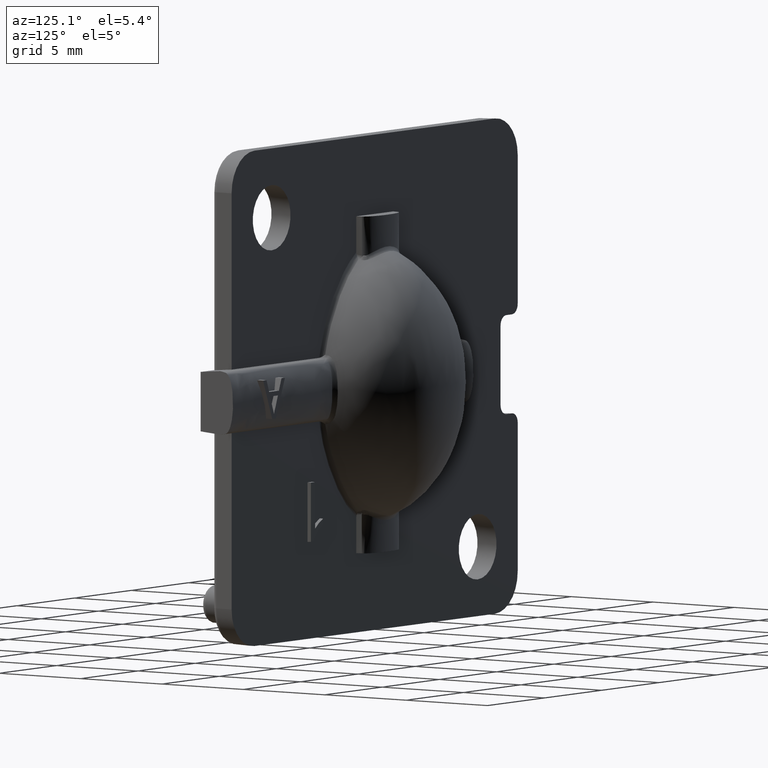
[diagram: clean part render]
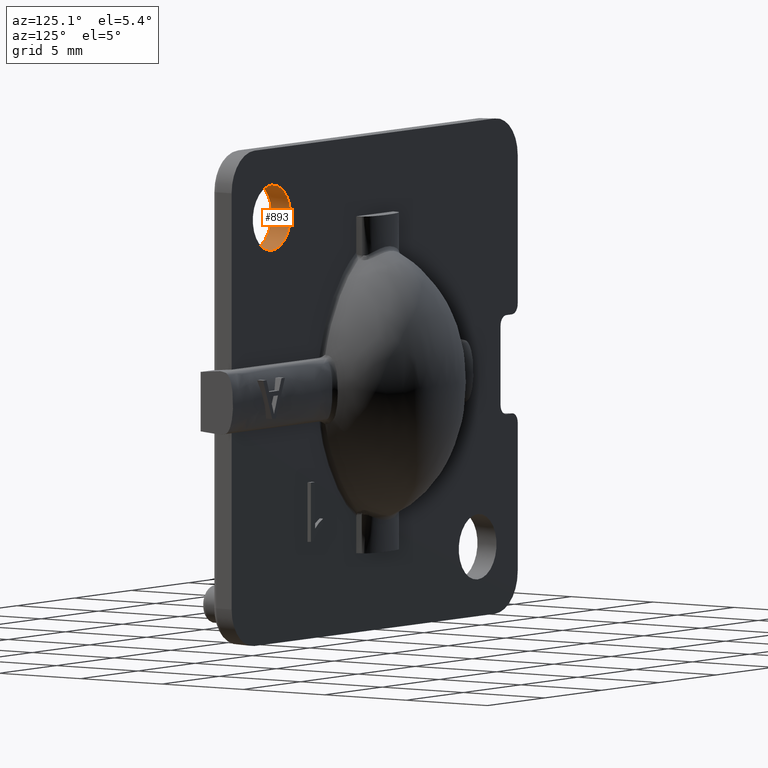
[diagram: same view with one face highlighted and labeled with its STEP entity id]
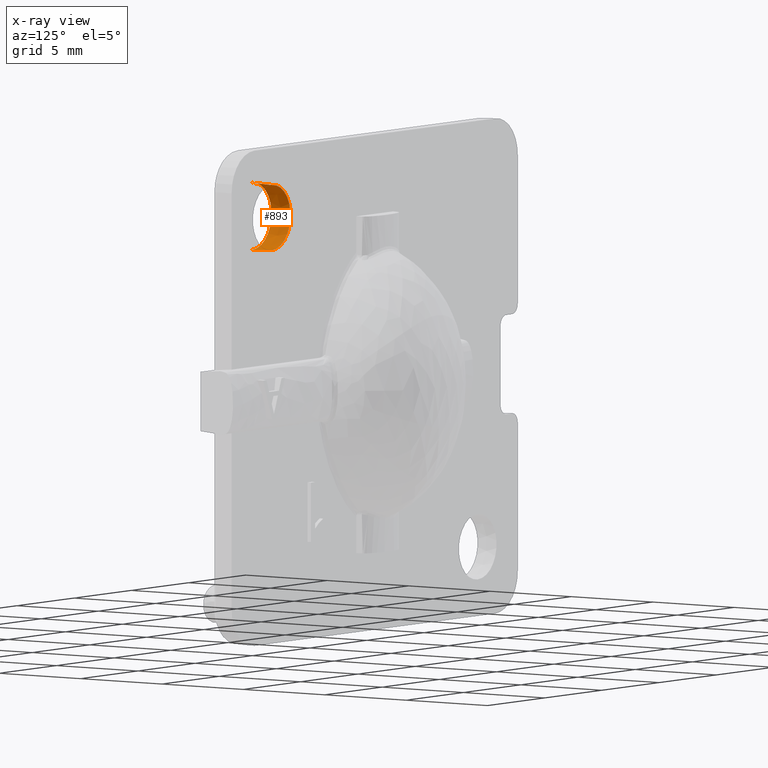
[diagram: x-ray of the same camera — body ghosted, the highlighted face saturated]
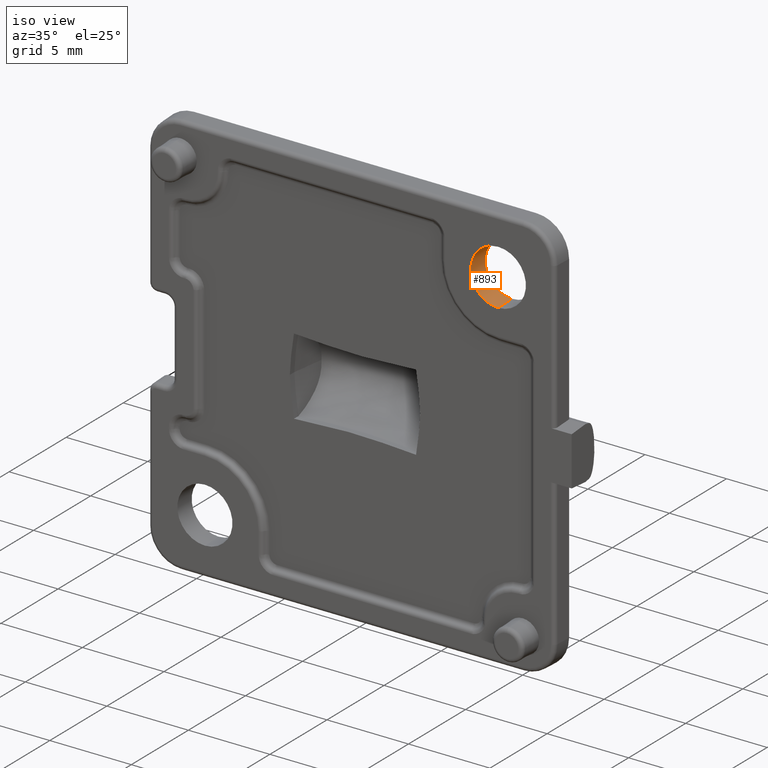
[diagram: same view with one face highlighted and labeled with its STEP entity id]
A machine part, auxiliary view. The second image highlights one B-rep face of the part: STEP entity #893.
The next image is the same camera in x-ray: the body ghosted, the highlighted face saturated — about 0% of this face is hidden behind the body in this view.
A second angle (iso view) of the same face is appended — the face is thin or edge-on in the first view.
In plain terms, the highlighted conical surface has half-angle 2 deg.
Its self-contained STEP definition (entity closure, byte-faithful):
#194 = DIRECTION ( 'NONE',  ( -0.0000000000000000000, -1.000000000000000000, -0.0000000000000000000 ) ) ;
#404 = FACE_OUTER_BOUND ( 'NONE', #5562, .T. ) ;
#893 = ADVANCED_FACE ( 'NONE', ( #404 ), #4645, .F. ) ;
#1090 = AXIS2_PLACEMENT_3D ( 'NONE', #5795, #6867, #3039 ) ;
#1166 = VECTOR ( 'NONE', #4223, 1000.000000000000100 ) ;
#1314 = ORIENTED_EDGE ( 'NONE', *, *, #2638, .T. ) ;
#1428 = AXIS2_PLACEMENT_3D ( 'NONE', #6431, #3149, #6976 ) ;
#1551 = VECTOR ( 'NONE', #4427, 1000.000000000000100 ) ;
#1867 = AXIS2_PLACEMENT_3D ( 'NONE', #3708, #194, #4255 ) ;
#2524 = ORIENTED_EDGE ( 'NONE', *, *, #4051, .T. ) ;
#2638 = EDGE_CURVE ( 'NONE', #5280, #4317, #7119, .T. ) ;
#2769 = VERTEX_POINT ( 'NONE', #6725 ) ;
#2842 = CIRCLE ( 'NONE', #1428, 1.650000000000000400 ) ;
#3039 = DIRECTION ( 'NONE',  ( 0.0000000000000000000, 0.0000000000000000000, -1.000000000000000000 ) ) ;
#3149 = DIRECTION ( 'NONE',  ( 0.0000000000000000000, -1.000000000000000000, 0.0000000000000000000 ) ) ;
#3683 = CARTESIAN_POINT ( 'NONE',  ( 9.000000000000000000, 0.4999999999999998900, 10.65000000000000000 ) ) ;
#3708 = CARTESIAN_POINT ( 'NONE',  ( 9.000000000000000000, -0.6999999999999999600, 9.000000000000000000 ) ) ;
#4051 = EDGE_CURVE ( 'NONE', #2769, #5280, #7154, .T. ) ;
#4223 = DIRECTION ( 'NONE',  ( 4.273955692857151000E-018, -0.9993908270190956500, 0.03489949670250104600 ) ) ;
#4255 = DIRECTION ( 'NONE',  ( 0.0000000000000000000, 0.0000000000000000000, 1.000000000000000000 ) ) ;
#4317 = VERTEX_POINT ( 'NONE', #6598 ) ;
#4427 = DIRECTION ( 'NONE',  ( 0.0000000000000000000, -0.9993908270190956500, -0.03489949670250104600 ) ) ;
#4584 = LINE ( 'NONE', #4995, #1551 ) ;
#4624 = ORIENTED_EDGE ( 'NONE', *, *, #5620, .F. ) ;
#4645 = CONICAL_SURFACE ( 'NONE', #1090, 1.650000000000000400, 0.03490658503988666700 ) ;
#4995 = CARTESIAN_POINT ( 'NONE',  ( 9.000000000000000000, 0.4999999999999998900, 7.349999999999998800 ) ) ;
#5252 = CARTESIAN_POINT ( 'NONE',  ( 9.000000000000000000, -0.6999999999999999600, 10.69190492339009800 ) ) ;
#5280 = VERTEX_POINT ( 'NONE', #5252 ) ;
#5562 = EDGE_LOOP ( 'NONE', ( #6199, #2524, #1314, #4624 ) ) ;
#5620 = EDGE_CURVE ( 'NONE', #6735, #4317, #4584, .T. ) ;
#5795 = CARTESIAN_POINT ( 'NONE',  ( 9.000000000000000000, 0.4999999999999998900, 9.000000000000000000 ) ) ;
#6078 = EDGE_CURVE ( 'NONE', #2769, #6735, #2842, .T. ) ;
#6199 = ORIENTED_EDGE ( 'NONE', *, *, #6078, .F. ) ;
#6431 = CARTESIAN_POINT ( 'NONE',  ( 9.000000000000000000, 0.4999999999999998900, 9.000000000000000000 ) ) ;
#6598 = CARTESIAN_POINT ( 'NONE',  ( 9.000000000000000000, -0.6999999999999999600, 7.308095076609901300 ) ) ;
#6725 = CARTESIAN_POINT ( 'NONE',  ( 9.000000000000000000, 0.4999999999999998900, 10.65000000000000000 ) ) ;
#6735 = VERTEX_POINT ( 'NONE', #7130 ) ;
#6867 = DIRECTION ( 'NONE',  ( -0.0000000000000000000, -1.000000000000000000, -0.0000000000000000000 ) ) ;
#6976 = DIRECTION ( 'NONE',  ( 0.0000000000000000000, 0.0000000000000000000, -1.000000000000000000 ) ) ;
#7119 = CIRCLE ( 'NONE', #1867, 1.691904923390098000 ) ;
#7130 = CARTESIAN_POINT ( 'NONE',  ( 9.000000000000000000, 0.4999999999999998900, 7.349999999999998800 ) ) ;
#7154 = LINE ( 'NONE', #3683, #1166 ) ;